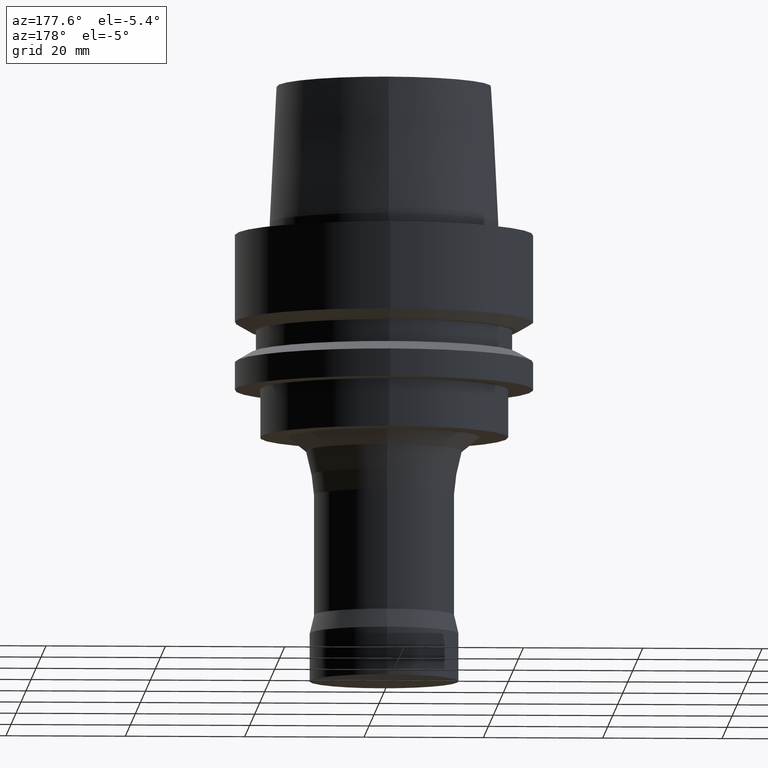
[diagram: clean part render]
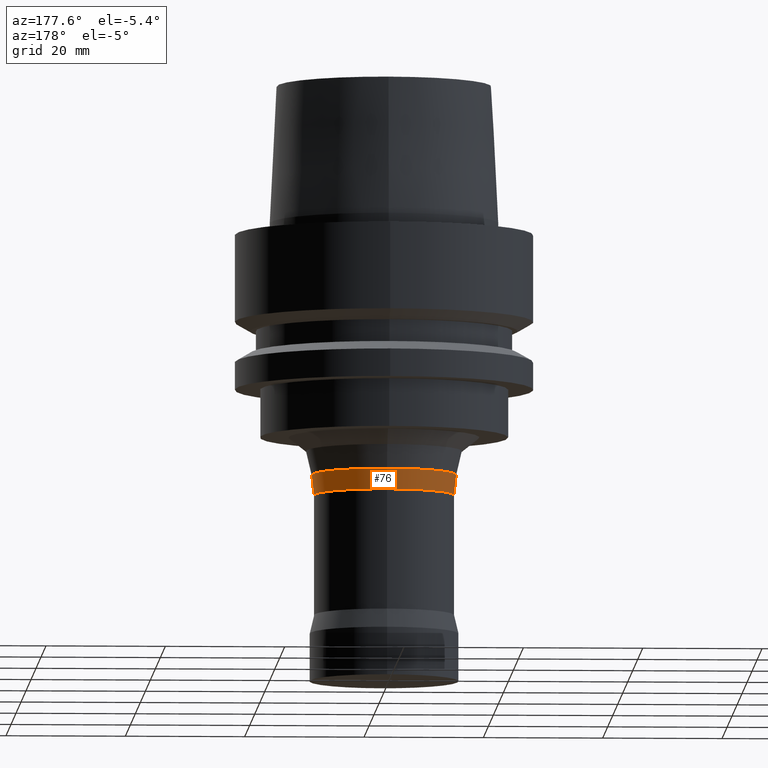
[diagram: same view with one face highlighted and labeled with its STEP entity id]
A machine part, auxiliary view. The second image highlights one B-rep face of the part: STEP entity #76.
In plain terms, the highlighted conical surface has half-angle 6.58 deg.
Its self-contained STEP definition (entity closure, byte-faithful):
#76=ADVANCED_FACE('',(#100,#101),#102,.T.);
#100=FACE_BOUND('',#161,.T.);
#101=FACE_BOUND('',#162,.T.);
#102=CONICAL_SURFACE('',#163,11.9469734975569,0.114845337526234);
#161=EDGE_LOOP('',(#224));
#162=EDGE_LOOP('',(#225));
#163=AXIS2_PLACEMENT_3D('',#226,#227,#228);
#224=ORIENTED_EDGE('',*,*,#324,.F.);
#225=ORIENTED_EDGE('',*,*,#322,.T.);
#226=CARTESIAN_POINT('',(2.57314956657061E-015,5.14629913314121E-015,-42.0227214632355));
#227=DIRECTION('',(-6.12323399573677E-017,-1.22464679914735E-016,1.0));
#228=DIRECTION('',(-1.23259516440783E-032,1.0,1.22464679914735E-016));
#322=EDGE_CURVE('',#342,#342,#343,.T.);
#324=EDGE_CURVE('',#346,#346,#347,.T.);
#342=VERTEX_POINT('',#382);
#343=CIRCLE('',#383,12.1439469951138);
#346=VERTEX_POINT('',#386);
#347=CIRCLE('',#387,11.75);
#382=CARTESIAN_POINT('',(2.46859090449758E-015,12.1439469951138,-40.315148926471));
#383=AXIS2_PLACEMENT_3D('',#422,#423,#424);
#386=CARTESIAN_POINT('',(2.67770822864364E-015,11.75,-43.730294));
#387=AXIS2_PLACEMENT_3D('',#428,#429,#430);
#422=CARTESIAN_POINT('',(2.46859090449758E-015,4.93718180899515E-015,-40.315148926471));
#423=DIRECTION('',(6.12323399573677E-017,1.22464679914735E-016,-1.0));
#424=DIRECTION('',(-1.23259516440783E-032,1.0,1.22464679914735E-016));
#428=CARTESIAN_POINT('',(2.67770822864364E-015,5.35541645728727E-015,-43.730294));
#429=DIRECTION('',(6.12323399573677E-017,1.22464679914735E-016,-1.0));
#430=DIRECTION('',(-1.23259516440783E-032,1.0,1.22464679914735E-016));